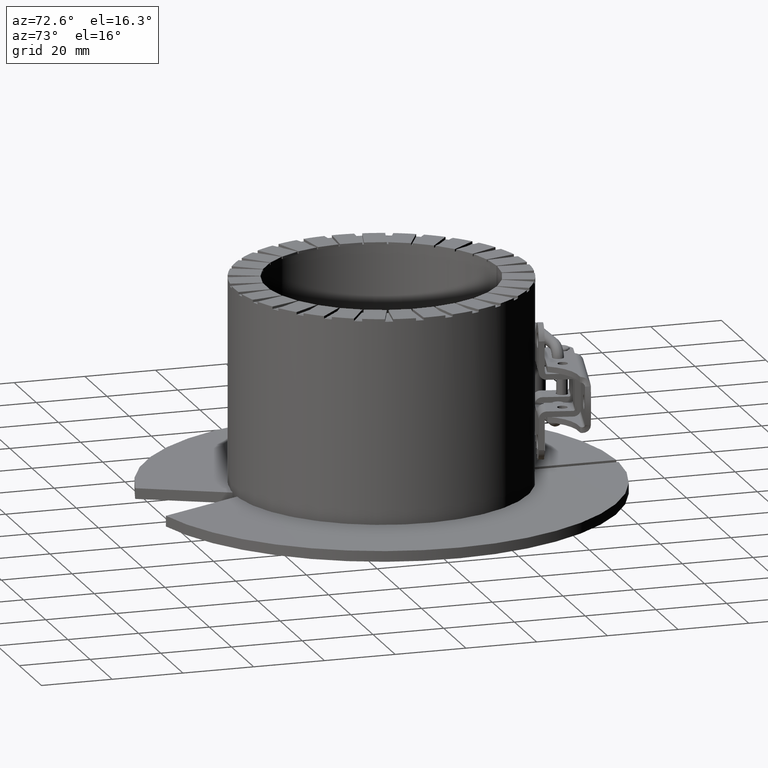
[diagram: clean part render]
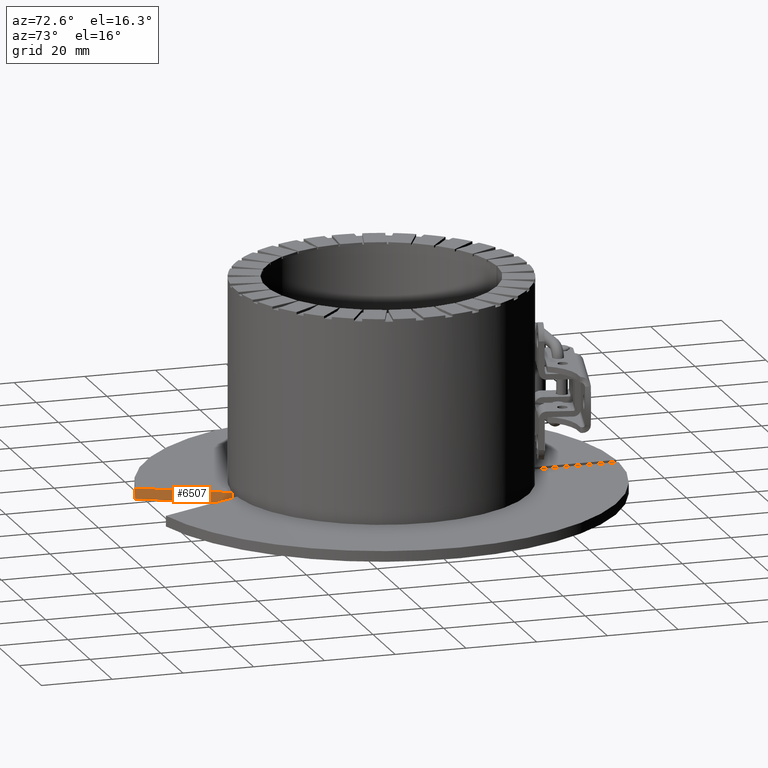
[diagram: same view with one face highlighted and labeled with its STEP entity id]
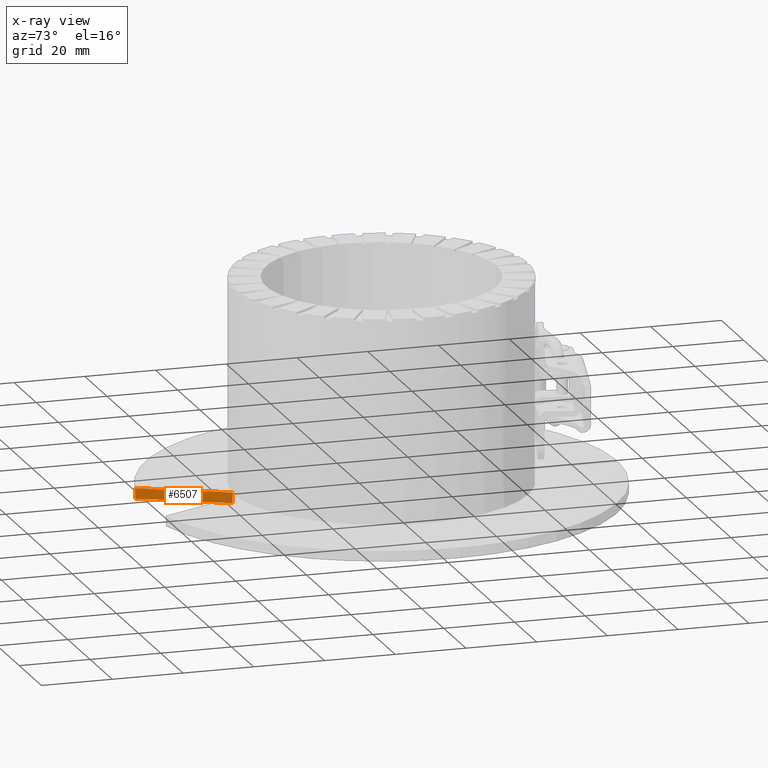
[diagram: x-ray of the same camera — body ghosted, the highlighted face saturated]
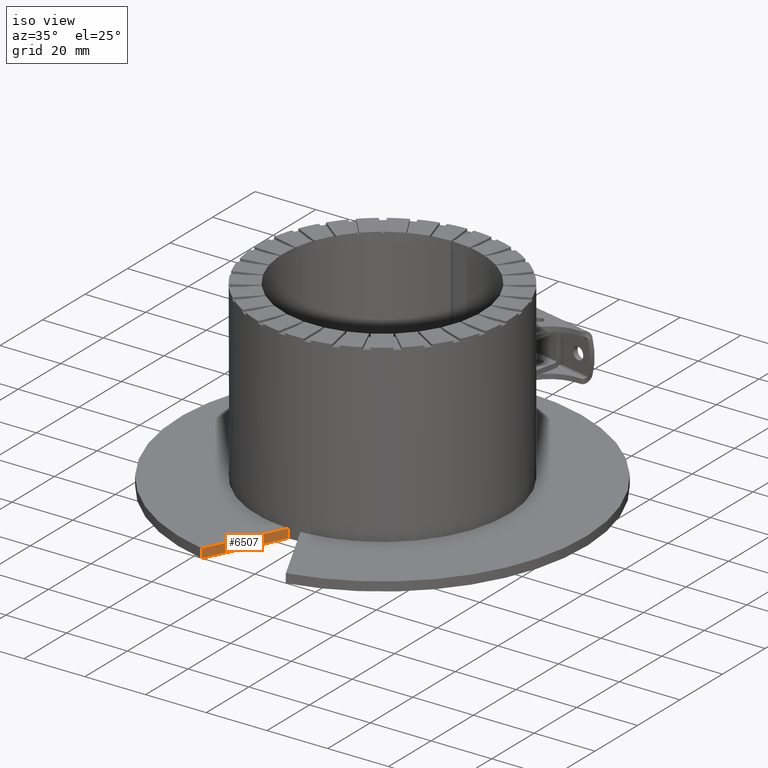
[diagram: same view with one face highlighted and labeled with its STEP entity id]
A machine part, auxiliary view. The second image highlights one B-rep face of the part: STEP entity #6507.
The next image is the same camera in x-ray: the body ghosted, the highlighted face saturated — about 0% of this face is hidden behind the body in this view.
A second angle (iso view) of the same face is appended — the face is thin or edge-on in the first view.
In plain terms, the highlighted planar face has unit normal (0.8949, -0.4462, 0).
Its self-contained STEP definition (entity closure, byte-faithful):
#6468=CARTESIAN_POINT('',(-13.885218662315694,-65.289839965339795,-27.050000000000004));
#6469=DIRECTION('',(0.894934361602025,-0.446197813109809,0.0));
#6470=DIRECTION('',(0.0,0.0,-1.0));
#6471=AXIS2_PLACEMENT_3D('',#6468,#6469,#6470);
#6472=PLANE('',#6471);
#6473=CARTESIAN_POINT('',(-13.885218662315694,-65.289839965339795,-30.050000000000008));
#6474=VERTEX_POINT('',#6473);
#6475=CARTESIAN_POINT('',(-2.000000000000005,-41.451779213925192,-30.050000000000008));
#6476=VERTEX_POINT('',#6475);
#6477=CARTESIAN_POINT('',(-13.885218662315694,-65.289839965339795,-30.050000000000008));
#6478=DIRECTION('',(0.446197813109809,0.894934361602025,0.0));
#6479=VECTOR('',#6478,26.636658255854673);
#6480=LINE('',#6477,#6479);
#6481=EDGE_CURVE('',#6474,#6476,#6480,.T.);
#6482=ORIENTED_EDGE('',*,*,#6481,.T.);
#6483=CARTESIAN_POINT('',(-2.000000000000005,-41.451779213925192,-27.050000000000004));
#6484=VERTEX_POINT('',#6483);
#6485=CARTESIAN_POINT('',(-2.000000000000005,-41.451779213925192,-27.050000000000004));
#6486=DIRECTION('',(0.0,0.0,-1.0));
#6487=VECTOR('',#6486,3.0);
#6488=LINE('',#6485,#6487);
#6489=EDGE_CURVE('',#6484,#6476,#6488,.T.);
#6490=ORIENTED_EDGE('',*,*,#6489,.F.);
#6491=CARTESIAN_POINT('',(-13.885218662315694,-65.289839965339795,-27.050000000000004));
#6492=VERTEX_POINT('',#6491);
#6493=CARTESIAN_POINT('',(-13.885218662315694,-65.289839965339795,-27.050000000000004));
#6494=DIRECTION('',(0.446197813109809,0.894934361602025,0.0));
#6495=VECTOR('',#6494,26.636658255854673);
#6496=LINE('',#6493,#6495);
#6497=EDGE_CURVE('',#6492,#6484,#6496,.T.);
#6498=ORIENTED_EDGE('',*,*,#6497,.F.);
#6499=CARTESIAN_POINT('',(-13.885218662315694,-65.289839965339795,-27.050000000000004));
#6500=DIRECTION('',(0.0,0.0,-1.0));
#6501=VECTOR('',#6500,3.0);
#6502=LINE('',#6499,#6501);
#6503=EDGE_CURVE('',#6492,#6474,#6502,.T.);
#6504=ORIENTED_EDGE('',*,*,#6503,.T.);
#6505=EDGE_LOOP('',(#6482,#6490,#6498,#6504));
#6506=FACE_OUTER_BOUND('',#6505,.T.);
#6507=ADVANCED_FACE('',(#6506),#6472,.T.);